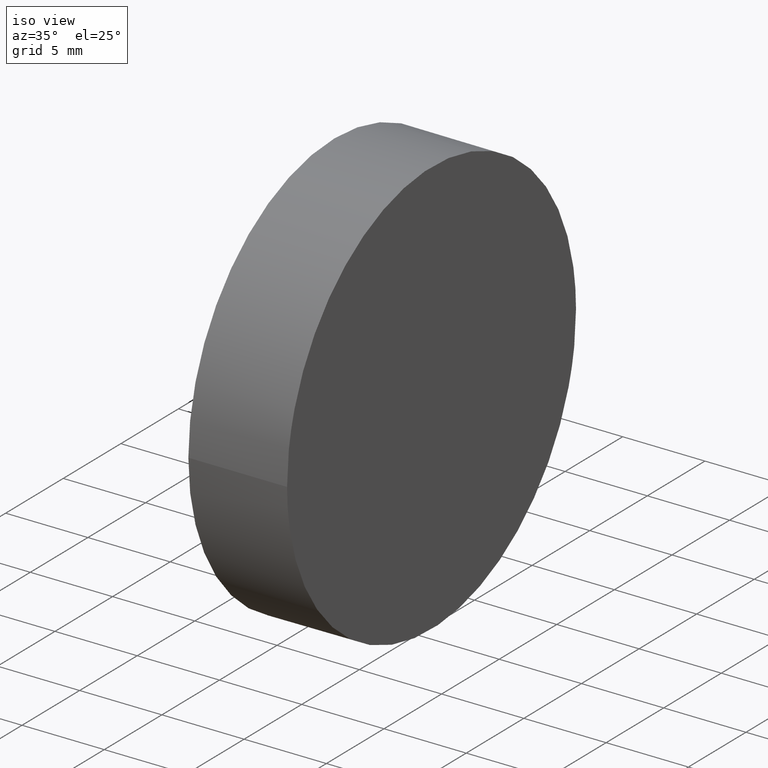
[diagram: clean part render]
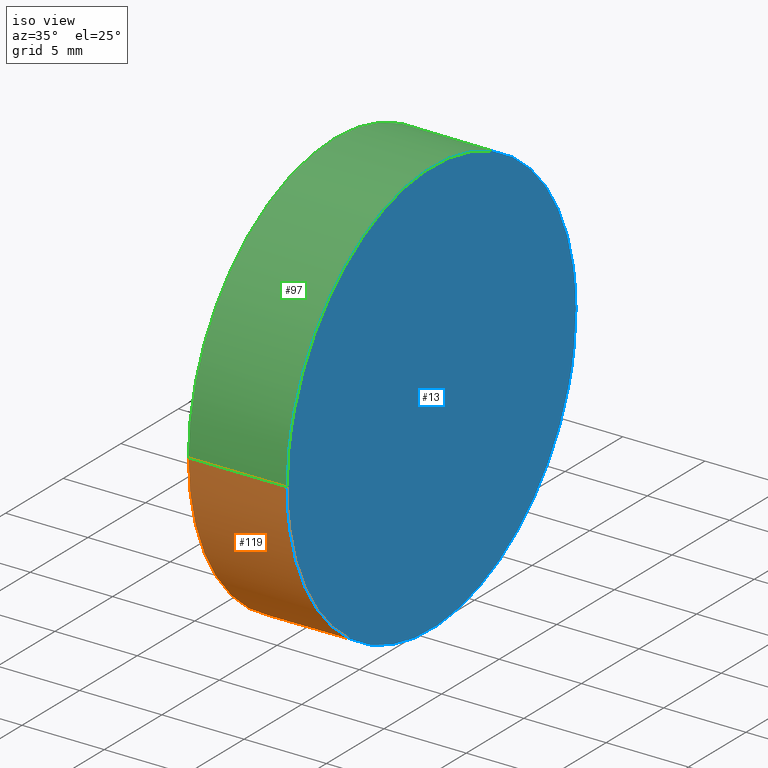
[diagram: same view with three faces highlighted in distinct colors, each labeled with its STEP entity id]
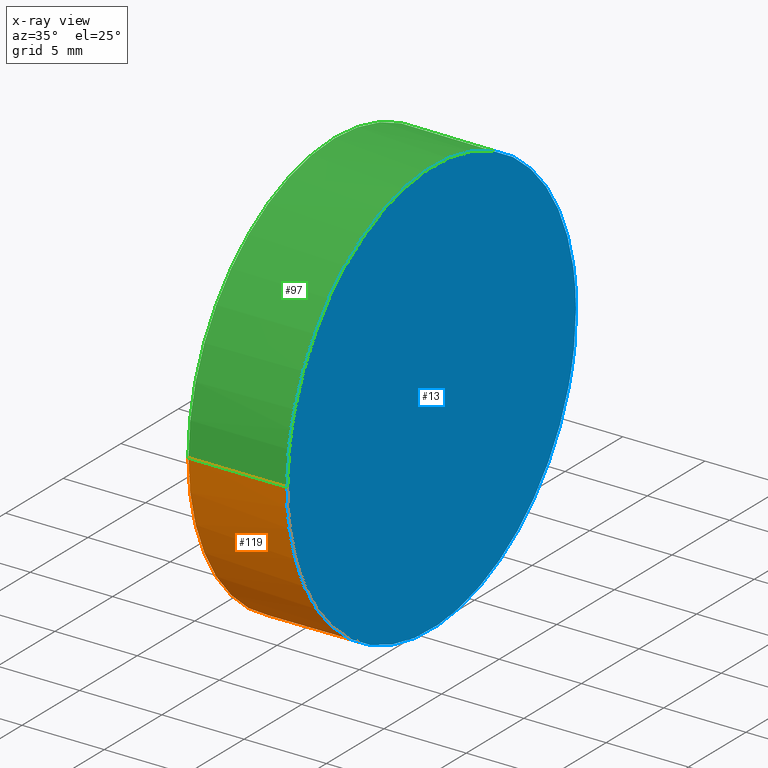
[diagram: x-ray of the same camera — body ghosted, the three highlighted faces saturated]
A machine part, iso view with three faces highlighted in distinct colors.
The next image is the same camera in x-ray (body ghosted, the three faces saturated) — at least one of them is partly hidden behind the body in this view.
Their STEP definitions:

[orange] entity #119 — the highlighted cylindrical surface (partial cylindrical patch) has radius 12.7 mm, axis along (-1, -0, -0).
#1 = EDGE_CURVE ( 'NONE', #63, #12, #26, .T. ) ;
#7 = AXIS2_PLACEMENT_3D ( 'NONE', #102, #92, #25 ) ;
#9 = DIRECTION ( 'NONE',  ( -1.000000000000000000, -1.224646799147353200E-016, -0.0000000000000000000 ) ) ;
#10 = VECTOR ( 'NONE', #9, 1000.000000000000000 ) ;
#12 = VERTEX_POINT ( 'NONE', #62 ) ;
#16 = EDGE_CURVE ( 'NONE', #12, #111, #98, .T. ) ;
#17 = ORIENTED_EDGE ( 'NONE', *, *, #1, .F. ) ;
#18 = FACE_OUTER_BOUND ( 'NONE', #70, .T. ) ;
#24 = CARTESIAN_POINT ( 'NONE',  ( 5.778337558114906800, 12.69999999999999900, -12.70000000000001000 ) ) ;
#25 = DIRECTION ( 'NONE',  ( 1.224646799147353700E-016, -1.000000000000000000, 0.0000000000000000000 ) ) ;
#26 = LINE ( 'NONE', #58, #41 ) ;
#27 = CARTESIAN_POINT ( 'NONE',  ( 6.000000000000003600, -12.69999999999999400, -12.70000000000001000 ) ) ;
#29 = CARTESIAN_POINT ( 'NONE',  ( 6.000000000000003600, -12.69999999999999900, 12.69999999999999900 ) ) ;
#34 = CYLINDRICAL_SURFACE ( 'NONE', #121, 12.70000000000000100 ) ;
#37 = DIRECTION ( 'NONE',  ( -1.000000000000000000, -1.224646799147353200E-016, -0.0000000000000000000 ) ) ;
#39 = CARTESIAN_POINT ( 'NONE',  ( 1.555301434917139200E-015, -12.70000000000000100, 12.69999999999999900 ) ) ;
#40 = DIRECTION ( 'NONE',  ( 1.365923996832131400E-016, -1.000000000000000000, 0.0000000000000000000 ) ) ;
#41 = VECTOR ( 'NONE', #49, 1000.000000000000000 ) ;
#49 = DIRECTION ( 'NONE',  ( -1.000000000000000000, -1.224646799147353200E-016, -0.0000000000000000000 ) ) ;
#58 = CARTESIAN_POINT ( 'NONE',  ( 9.999999999999998200, 12.70000000000000300, 12.70000000000000100 ) ) ;
#60 = CARTESIAN_POINT ( 'NONE',  ( 10.00000000000000200, -12.69999999999999900, 12.69999999999999900 ) ) ;
#62 = CARTESIAN_POINT ( 'NONE',  ( -1.555301434917139200E-015, 12.70000000000000100, 12.70000000000000100 ) ) ;
#63 = VERTEX_POINT ( 'NONE', #77 ) ;
#68 = CARTESIAN_POINT ( 'NONE',  ( 10.00000000000000000, 1.224646799147353300E-015, 12.69999999999999900 ) ) ;
#70 = EDGE_LOOP ( 'NONE', ( #17, #130, #109, #101 ) ) ;
#77 = CARTESIAN_POINT ( 'NONE',  ( 5.778337558114906800, 12.70000000000000300, 12.70000000000000100 ) ) ;
#81 = CARTESIAN_POINT ( 'NONE',  ( 5.778337558114906800, 12.70000000000000300, 12.70000000000000100 ) ) ;
#87 = LINE ( 'NONE', #60, #10 ) ;
#92 = DIRECTION ( 'NONE',  ( -1.000000000000000000, -1.224646799147353700E-016, 0.0000000000000000000 ) ) ;
#98 = CIRCLE ( 'NONE', #7, 12.70000000000000100 ) ;
#101 = ORIENTED_EDGE ( 'NONE', *, *, #16, .F. ) ;
#102 = CARTESIAN_POINT ( 'NONE',  ( 0.0000000000000000000, 0.0000000000000000000, 12.69999999999999900 ) ) ;
#109 = ORIENTED_EDGE ( 'NONE', *, *, #124, .T. ) ;
#110 = EDGE_CURVE ( 'NONE', #63, #133, #115, .T. ) ;
#111 = VERTEX_POINT ( 'NONE', #39 ) ;
#115 =( BOUNDED_CURVE ( )  B_SPLINE_CURVE ( 3, ( #81, #24, #27, #29 ),
 .UNSPECIFIED., .F., .T. ) 
 B_SPLINE_CURVE_WITH_KNOTS ( ( 4, 4 ),
 ( 0.0000000000000000000, 3.141592653589793100 ),
 .UNSPECIFIED. ) 
 CURVE ( )  GEOMETRIC_REPRESENTATION_ITEM ( )  RATIONAL_B_SPLINE_CURVE ( ( 1.000000000000000000, 0.3333333333333333700, 0.3333333333333333700, 1.000000000000000000 ) ) 
 REPRESENTATION_ITEM ( '' )  );
#119 = ADVANCED_FACE ( 'NONE', ( #18 ), #34, .T. ) ;
#121 = AXIS2_PLACEMENT_3D ( 'NONE', #68, #37, #40 ) ;
#124 = EDGE_CURVE ( 'NONE', #133, #111, #87, .T. ) ;
#130 = ORIENTED_EDGE ( 'NONE', *, *, #110, .T. ) ;
#133 = VERTEX_POINT ( 'NONE', #140 ) ;
#140 = CARTESIAN_POINT ( 'NONE',  ( 6.000000000000003600, -12.69999999999999900, 12.69999999999999900 ) ) ;

[blue] entity #13 — the highlighted planar face has unit normal (-1, -0.0087, 0).
#4 = CARTESIAN_POINT ( 'NONE',  ( 6.000000000000003600, -12.69999999999999900, 12.69999999999999900 ) ) ;
#8 = DIRECTION ( 'NONE',  ( -0.9999619230641714200, -0.008726535498367004500, 0.0000000000000000000 ) ) ;
#13 = ADVANCED_FACE ( 'NONE', ( #122 ), #50, .F. ) ;
#19 = EDGE_LOOP ( 'NONE', ( #64, #20 ) ) ;
#20 = ORIENTED_EDGE ( 'NONE', *, *, #110, .F. ) ;
#24 = CARTESIAN_POINT ( 'NONE',  ( 5.778337558114906800, 12.69999999999999900, -12.70000000000001000 ) ) ;
#27 = CARTESIAN_POINT ( 'NONE',  ( 6.000000000000003600, -12.69999999999999400, -12.70000000000001000 ) ) ;
#29 = CARTESIAN_POINT ( 'NONE',  ( 6.000000000000003600, -12.69999999999999900, 12.69999999999999900 ) ) ;
#47 = CARTESIAN_POINT ( 'NONE',  ( 5.778337558114906800, 12.70000000000000300, 12.70000000000000100 ) ) ;
#50 = PLANE ( 'NONE',  #52 ) ;
#52 = AXIS2_PLACEMENT_3D ( 'NONE', #107, #8, #114 ) ;
#63 = VERTEX_POINT ( 'NONE', #77 ) ;
#64 = ORIENTED_EDGE ( 'NONE', *, *, #128, .F. ) ;
#77 = CARTESIAN_POINT ( 'NONE',  ( 5.778337558114906800, 12.70000000000000300, 12.70000000000000100 ) ) ;
#78 = CARTESIAN_POINT ( 'NONE',  ( 6.000000000000003600, -12.70000000000000500, 38.09999999999999400 ) ) ;
#81 = CARTESIAN_POINT ( 'NONE',  ( 5.778337558114906800, 12.70000000000000300, 12.70000000000000100 ) ) ;
#88 = CARTESIAN_POINT ( 'NONE',  ( 5.778337558114906800, 12.69999999999999900, 38.10000000000000900 ) ) ;
#107 = CARTESIAN_POINT ( 'NONE',  ( 6.000000000000003600, -12.70000000000000100, 25.39999999999999900 ) ) ;
#110 = EDGE_CURVE ( 'NONE', #63, #133, #115, .T. ) ;
#114 = DIRECTION ( 'NONE',  ( 0.008726535498367004500, -0.9999619230641714200, 0.0000000000000000000 ) ) ;
#115 =( BOUNDED_CURVE ( )  B_SPLINE_CURVE ( 3, ( #81, #24, #27, #29 ),
 .UNSPECIFIED., .F., .T. ) 
 B_SPLINE_CURVE_WITH_KNOTS ( ( 4, 4 ),
 ( 0.0000000000000000000, 3.141592653589793100 ),
 .UNSPECIFIED. ) 
 CURVE ( )  GEOMETRIC_REPRESENTATION_ITEM ( )  RATIONAL_B_SPLINE_CURVE ( ( 1.000000000000000000, 0.3333333333333333700, 0.3333333333333333700, 1.000000000000000000 ) ) 
 REPRESENTATION_ITEM ( '' )  );
#122 = FACE_OUTER_BOUND ( 'NONE', #19, .T. ) ;
#128 = EDGE_CURVE ( 'NONE', #133, #63, #129, .T. ) ;
#129 =( BOUNDED_CURVE ( )  B_SPLINE_CURVE ( 3, ( #4, #78, #88, #47 ),
 .UNSPECIFIED., .F., .F. ) 
 B_SPLINE_CURVE_WITH_KNOTS ( ( 4, 4 ),
 ( 3.141592653589793100, 6.283185307179586200 ),
 .UNSPECIFIED. ) 
 CURVE ( )  GEOMETRIC_REPRESENTATION_ITEM ( )  RATIONAL_B_SPLINE_CURVE ( ( 1.000000000000000000, 0.3333333333333333700, 0.3333333333333333700, 1.000000000000000000 ) ) 
 REPRESENTATION_ITEM ( '' )  );
#133 = VERTEX_POINT ( 'NONE', #140 ) ;
#140 = CARTESIAN_POINT ( 'NONE',  ( 6.000000000000003600, -12.69999999999999900, 12.69999999999999900 ) ) ;

[green] entity #97 — the highlighted cylindrical surface (partial cylindrical patch) has radius 12.7 mm, axis along (-1, -0, -0).
#1 = EDGE_CURVE ( 'NONE', #63, #12, #26, .T. ) ;
#4 = CARTESIAN_POINT ( 'NONE',  ( 6.000000000000003600, -12.69999999999999900, 12.69999999999999900 ) ) ;
#6 = FACE_OUTER_BOUND ( 'NONE', #95, .T. ) ;
#9 = DIRECTION ( 'NONE',  ( -1.000000000000000000, -1.224646799147353200E-016, -0.0000000000000000000 ) ) ;
#10 = VECTOR ( 'NONE', #9, 1000.000000000000000 ) ;
#12 = VERTEX_POINT ( 'NONE', #62 ) ;
#15 = AXIS2_PLACEMENT_3D ( 'NONE', #105, #65, #21 ) ;
#21 = DIRECTION ( 'NONE',  ( 1.365923996832131400E-016, -1.000000000000000000, 0.0000000000000000000 ) ) ;
#26 = LINE ( 'NONE', #58, #41 ) ;
#39 = CARTESIAN_POINT ( 'NONE',  ( 1.555301434917139200E-015, -12.70000000000000100, 12.69999999999999900 ) ) ;
#41 = VECTOR ( 'NONE', #49, 1000.000000000000000 ) ;
#47 = CARTESIAN_POINT ( 'NONE',  ( 5.778337558114906800, 12.70000000000000300, 12.70000000000000100 ) ) ;
#49 = DIRECTION ( 'NONE',  ( -1.000000000000000000, -1.224646799147353200E-016, -0.0000000000000000000 ) ) ;
#53 = ORIENTED_EDGE ( 'NONE', *, *, #124, .F. ) ;
#58 = CARTESIAN_POINT ( 'NONE',  ( 9.999999999999998200, 12.70000000000000300, 12.70000000000000100 ) ) ;
#60 = CARTESIAN_POINT ( 'NONE',  ( 10.00000000000000200, -12.69999999999999900, 12.69999999999999900 ) ) ;
#61 = DIRECTION ( 'NONE',  ( -1.000000000000000000, -1.224646799147353700E-016, 0.0000000000000000000 ) ) ;
#62 = CARTESIAN_POINT ( 'NONE',  ( -1.555301434917139200E-015, 12.70000000000000100, 12.70000000000000100 ) ) ;
#63 = VERTEX_POINT ( 'NONE', #77 ) ;
#65 = DIRECTION ( 'NONE',  ( -1.000000000000000000, -1.224646799147353200E-016, -0.0000000000000000000 ) ) ;
#67 = ORIENTED_EDGE ( 'NONE', *, *, #128, .T. ) ;
#75 = ORIENTED_EDGE ( 'NONE', *, *, #104, .F. ) ;
#77 = CARTESIAN_POINT ( 'NONE',  ( 5.778337558114906800, 12.70000000000000300, 12.70000000000000100 ) ) ;
#78 = CARTESIAN_POINT ( 'NONE',  ( 6.000000000000003600, -12.70000000000000500, 38.09999999999999400 ) ) ;
#79 = ORIENTED_EDGE ( 'NONE', *, *, #1, .T. ) ;
#84 = CARTESIAN_POINT ( 'NONE',  ( 0.0000000000000000000, 0.0000000000000000000, 12.69999999999999900 ) ) ;
#86 = CYLINDRICAL_SURFACE ( 'NONE', #15, 12.70000000000000100 ) ;
#87 = LINE ( 'NONE', #60, #10 ) ;
#88 = CARTESIAN_POINT ( 'NONE',  ( 5.778337558114906800, 12.69999999999999900, 38.10000000000000900 ) ) ;
#95 = EDGE_LOOP ( 'NONE', ( #67, #79, #75, #53 ) ) ;
#97 = ADVANCED_FACE ( 'NONE', ( #6 ), #86, .T. ) ;
#104 = EDGE_CURVE ( 'NONE', #111, #12, #136, .T. ) ;
#105 = CARTESIAN_POINT ( 'NONE',  ( 10.00000000000000000, 1.224646799147353300E-015, 12.69999999999999900 ) ) ;
#108 = AXIS2_PLACEMENT_3D ( 'NONE', #84, #61, #118 ) ;
#111 = VERTEX_POINT ( 'NONE', #39 ) ;
#118 = DIRECTION ( 'NONE',  ( 1.224646799147353700E-016, -1.000000000000000000, 0.0000000000000000000 ) ) ;
#124 = EDGE_CURVE ( 'NONE', #133, #111, #87, .T. ) ;
#128 = EDGE_CURVE ( 'NONE', #133, #63, #129, .T. ) ;
#129 =( BOUNDED_CURVE ( )  B_SPLINE_CURVE ( 3, ( #4, #78, #88, #47 ),
 .UNSPECIFIED., .F., .F. ) 
 B_SPLINE_CURVE_WITH_KNOTS ( ( 4, 4 ),
 ( 3.141592653589793100, 6.283185307179586200 ),
 .UNSPECIFIED. ) 
 CURVE ( )  GEOMETRIC_REPRESENTATION_ITEM ( )  RATIONAL_B_SPLINE_CURVE ( ( 1.000000000000000000, 0.3333333333333333700, 0.3333333333333333700, 1.000000000000000000 ) ) 
 REPRESENTATION_ITEM ( '' )  );
#133 = VERTEX_POINT ( 'NONE', #140 ) ;
#136 = CIRCLE ( 'NONE', #108, 12.70000000000000100 ) ;
#140 = CARTESIAN_POINT ( 'NONE',  ( 6.000000000000003600, -12.69999999999999900, 12.69999999999999900 ) ) ;